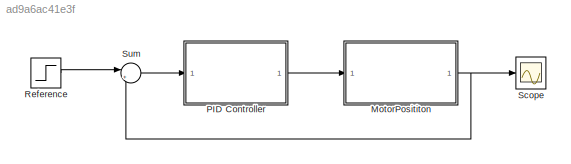
MODEL slx_ad9a6ac41e3f
KIND model
CONFIG AbsTol = auto
CONFIG EnableMultiTasking = off
CONFIG FixedStep = auto
CONFIG MaxStep = auto
CONFIG MinStep = auto
CONFIG RelTol = 1e-3
CONFIG SampleTimeConstraint = Unconstrained
CONFIG SolverName = VariableStepAuto
CONFIG StartTime = 0.0
CONFIG StopTime = 0.2
WORKSPACE source: mxarray member
WORKSPACE J: Simulink.Parameter (value not decoded)
WORKSPACE K: Simulink.Parameter (value not decoded)
WORKSPACE Kd: Simulink.Parameter (value not decoded)
WORKSPACE Ki: Simulink.Parameter (value not decoded)
WORKSPACE Kp: Simulink.Parameter (value not decoded)
WORKSPACE L: Simulink.Parameter (value not decoded)
WORKSPACE R: Simulink.Parameter (value not decoded)
WORKSPACE b: Simulink.Parameter (value not decoded)
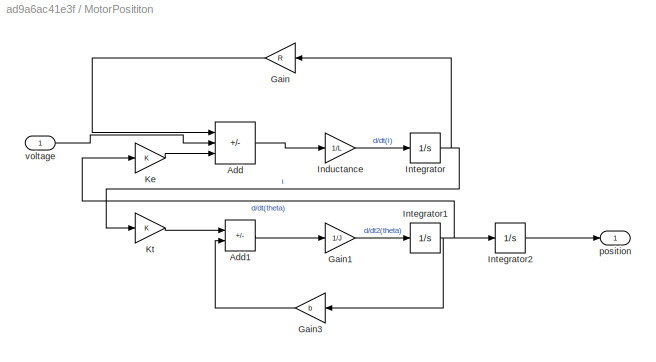
BLOCK [SubSystem] MotorPosititon
  Ports = [1, 1]
  RequestExecContextInheritance = off
BLOCK [Sum] MotorPosititon/Add
  IconShape = rectangular
  Inputs = -+-
  Ports = [3, 1]
BLOCK [Sum] MotorPosititon/Add1
  IconShape = rectangular
  Inputs = +-
  Ports = [2, 1]
BLOCK [Gain] MotorPosititon/Gain
  Gain = R
  NameLocation = top
BLOCK [Gain] MotorPosititon/Gain1
  Gain = 1/J
BLOCK [Gain] MotorPosititon/Gain3
  Gain = b
  NameLocation = top
BLOCK [Gain] MotorPosititon/Inductance
  Gain = 1/L
BLOCK [Integrator] MotorPosititon/Integrator
  Ports = [1, 1]
BLOCK [Integrator] MotorPosititon/Integrator1
  Ports = [1, 1]
BLOCK [Integrator] MotorPosititon/Integrator2
  Ports = [1, 1]
BLOCK [Gain] MotorPosititon/Ke
  Gain = K
BLOCK [Gain] MotorPosititon/Kt
  Gain = K
BLOCK [Outport] MotorPosititon/position
BLOCK [Inport] MotorPosititon/voltage
BLOCK [ModelReference] PID Controller
  ModelNameDialog = motor_controller
  ModelReferenceVersion = 1.8
  Ports = [1, 1]
BLOCK [Step] Reference
  SampleTime = 0
  Time = 0
BLOCK [Scope] Scope
  Floating = off
  NumInputPorts = 1
  Ports = [1]
  ScopeSpecificationString = Simulink.scopes.TimeScopeBlockCfg('CurrentConfiguration', extmgr.ConfigurationSet(extmgr.Configuration('Core','General UI',true),extmgr.Configuration('Core','Source UI',true),extmgr.Configuration('Sources','WiredSimulink',true),extmgr.Configuration('Visuals','Time Domain',true,'SerializedDisplays',{struct('MinYLimReal','-0.06447','MaxYLimReal','0.58022','YLabelReal','','MinYLimMag','0.00000','MaxY...<+1385ch>
BLOCK [Sum] Sum
  Inputs = |+-
  Ports = [2, 1]
LINE MotorPosititon/Add1:1 -> MotorPosititon/Gain1:1
LINE MotorPosititon/Add:1 -> MotorPosititon/Inductance:1
LINE MotorPosititon/Gain1:1 -> MotorPosititon/Integrator1:1
LINE MotorPosititon/Gain3:1 -> MotorPosititon/Add1:2
LINE MotorPosititon/Gain:1 -> MotorPosititon/Add:1
LINE MotorPosititon/Inductance:1 -> MotorPosititon/Integrator:1
NET MotorPosititon/Integrator1:1 -> MotorPosititon/Gain3:1, MotorPosititon/Integrator2:1, MotorPosititon/Ke:1
LINE MotorPosititon/Integrator2:1 -> MotorPosititon/position:1
NET MotorPosititon/Integrator:1 -> MotorPosititon/Gain:1, MotorPosititon/Kt:1
LINE MotorPosititon/Ke:1 -> MotorPosititon/Add:3
LINE MotorPosititon/Kt:1 -> MotorPosititon/Add1:1
LINE MotorPosititon/voltage:1 -> MotorPosititon/Add:2
NET MotorPosititon:1 -> Scope:1, Sum:2
LINE PID Controller:1 -> MotorPosititon:1
LINE Reference:1 -> Sum:1
LINE Sum:1 -> PID Controller:1
note: NET lines group one-source signal fan-out (src -> all destinations, sorted); 1:1 wires keep LINE
